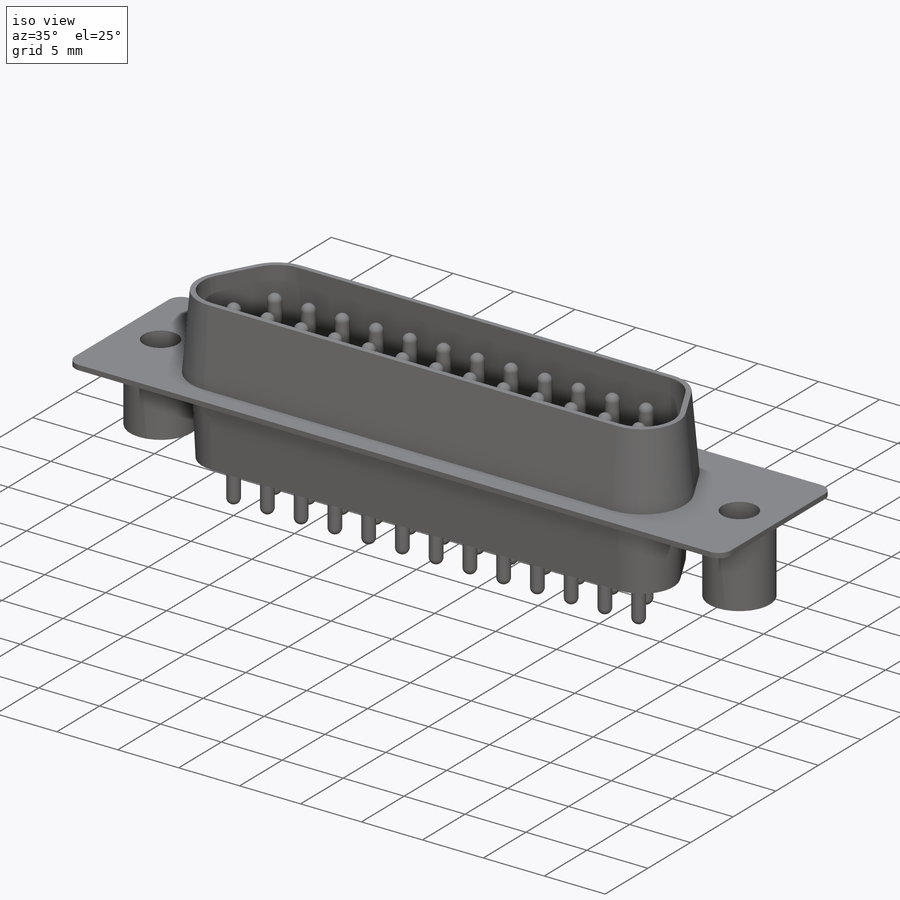
[diagram: iso view]
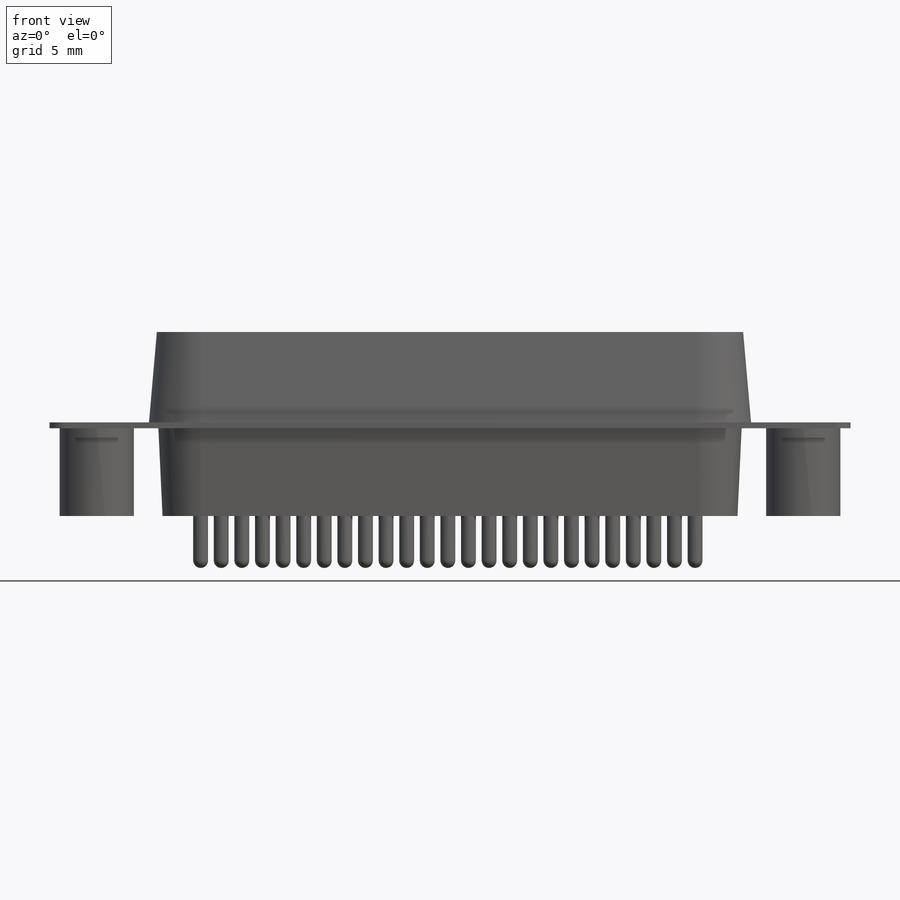
[diagram: front view]
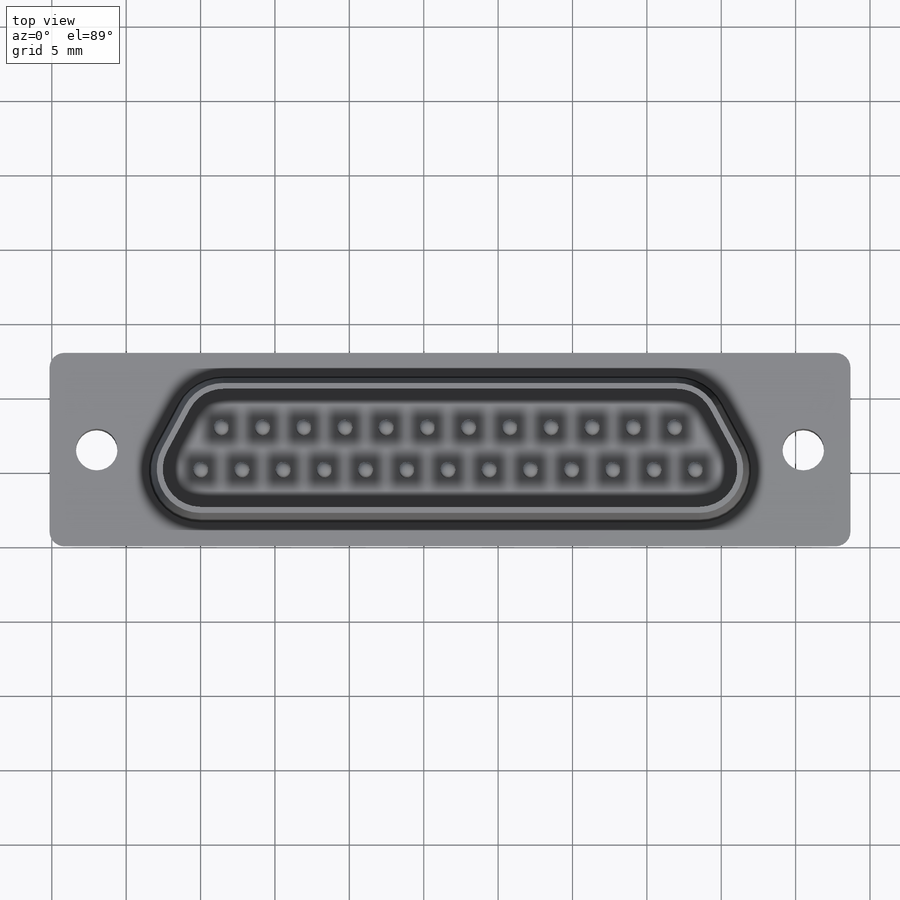
[diagram: top view]
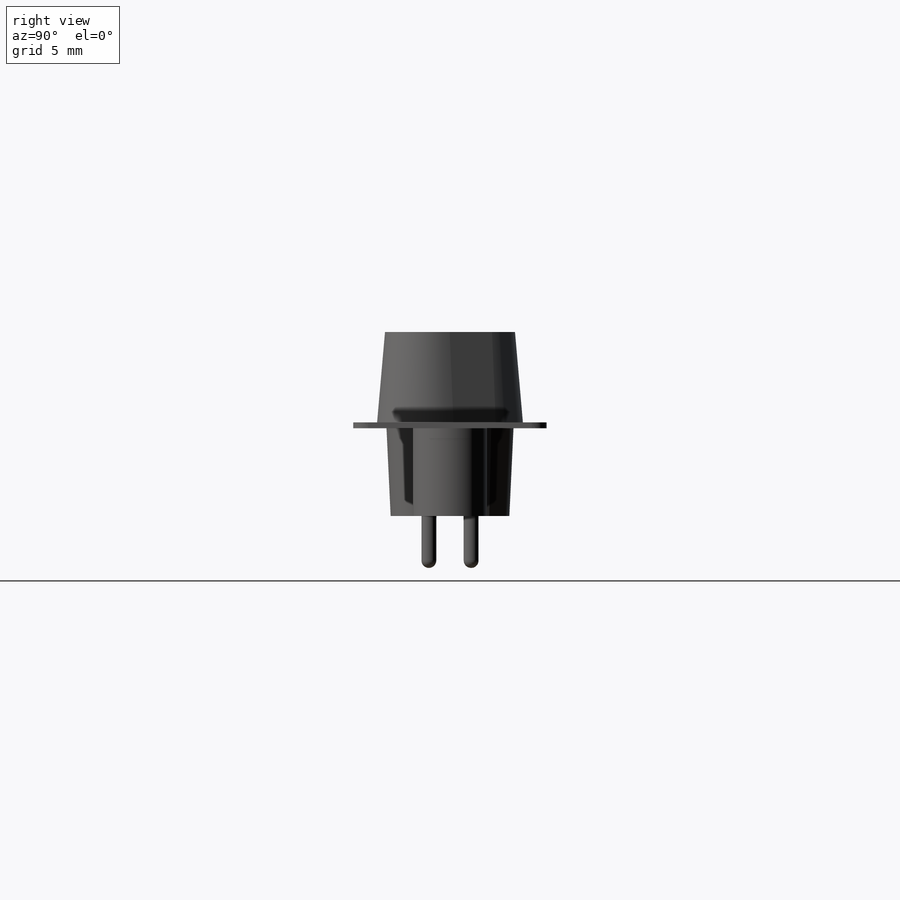
[diagram: right view]
SOLIDWORKS PART (.sldprt)
format: sldprt  version: not decoded by parser v0  size: 627,200 bytes
history: native  units: mm
features: sketch x11, extrude x7, dome x4, pattern_linear x4, cut_extrude x3, plane x2, material x1, fillet x1, mirror x1 (+12 scaffold rows collapsed)
feature tree (46):
  scaffold x12  (default folders/planes/origin — collapsed)
  material  "Material <not specified>"
  sketch  "Sketch1"  dims[c1.D1=5.9mm c1.D2=29.84mm c1.D3=10.16mm c1.D4=0.4mm c2.D2=53.85mm]
  extrude  "Base-Extrude"  Depth=5.08mm
  fillet  "Fillet1"  Radius=1mm
  sketch  "Sketch2"  dims[D1=2.8mm D2=3.175mm D3=~15.542553mm]
  plane  "Centreline Plane"
  sketch  "Sketch3"  dims[D1=5.0mm D2=3.175mm]
  extrude  "Boss-Extrude1"  Depth=5.9mm
  cut_extrude  "Cut-Extrude1"  [1 undecoded]
  mirror  "Mirror1"
  sketch  "Sketch4"  dims[D1=2.8492mm D2=15.235mm D3=15.235mm D4=5.6892mm]
  extrude  "Boss-Extrude2"  Depth=5.9mm
  sketch  "Sketch5"  dims[D1=0.4mm]
  cut_extrude  "Cut-Extrude2"  Depth=0.01mm
  sketch  "Sketch6"  dims[D1=1.0mm]
  extrude  "Boss-Extrude3"  Depth=3mm
  dome  "Dome1"
  pattern_linear  "LPattern2"  Count1=13 Count2=1 Spacing1=2.77mm Spacing2=50mm
  sketch  "Sketch7"  dims[D1=1.0mm D2=2.84mm D3=1.385mm]
  extrude  "Boss-Extrude4"  Depth=3mm
  dome  "Dome2"
  pattern_linear  "LPattern4"  Count1=12 Count2=1 Spacing1=2.77mm Spacing2=50mm
  sketch  "Sketch8"  dims[c1.D1=6.9622mm c1.D2=6.9622mm c2.D1=3.4811mm c2.D2=9.8022mm]
  extrude  "Boss-Extrude5"  Depth=6.07mm
  sketch  "Sketch9"  dims[D1=0.4mm]
  cut_extrude  "Cut-Extrude3"  Depth=5.47mm
  sketch  "Sketch10"
  extrude  "Boss-Extrude6"  Depth=4mm
  dome  "Dome3"
  pattern_linear  "LPattern5"  Count1=13 Count2=1 Spacing1=2.77mm Spacing2=50mm
  dome  "Dome4"
  pattern_linear  "LPattern6"  Count1=12 Count2=1 Spacing1=2.77mm Spacing2=50mm
  plane  "Board Plane"  Offset=5.08mm
  sketch  "Component_Outline"
decode coverage: 23 of 31 modeling features carry decoded parameters
note: ~ marks probable driven/reference dimensions
note: 1 parameter value undecoded
note: suppression state not decoded; provenance and decode notes live in map.json
